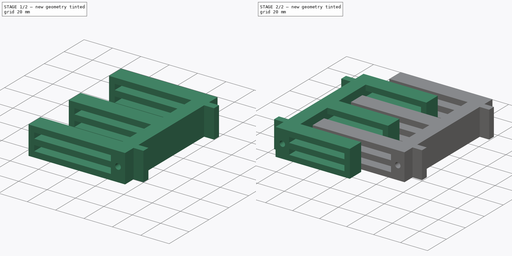
[diagram: build sequence overview — one tinted view per stage of 2, left to right]
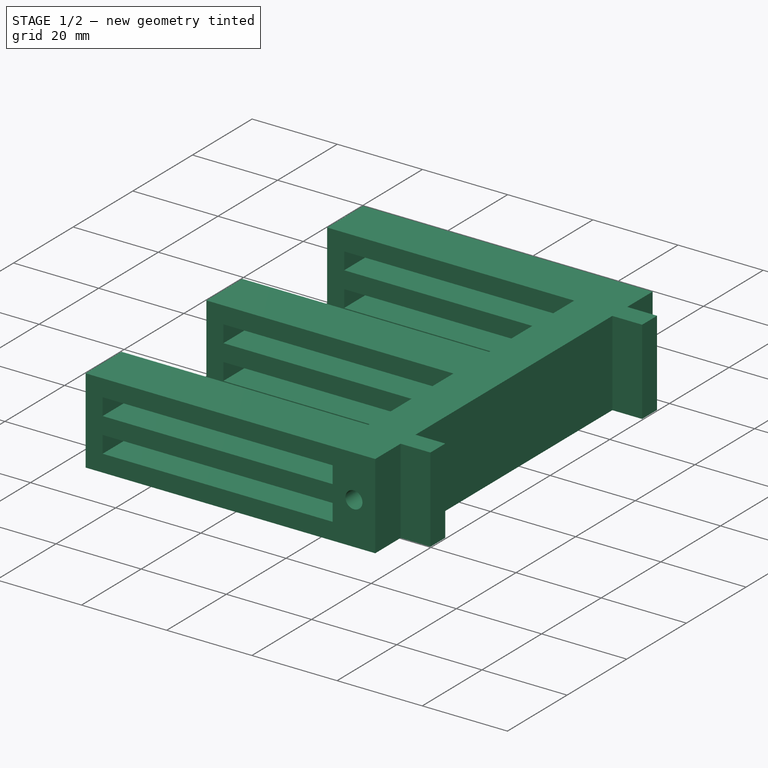
[diagram: stage 1 of 2 — iso view after this stage's code; geometry added in this stage tinted green]
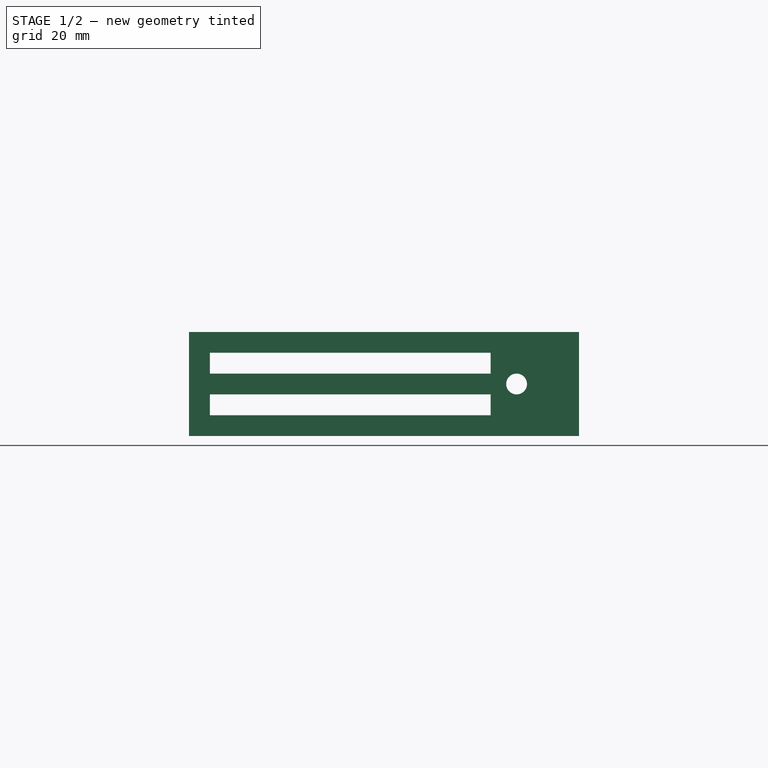
[diagram: stage 1 of 2 — front view after this stage's code; geometry added in this stage tinted green]
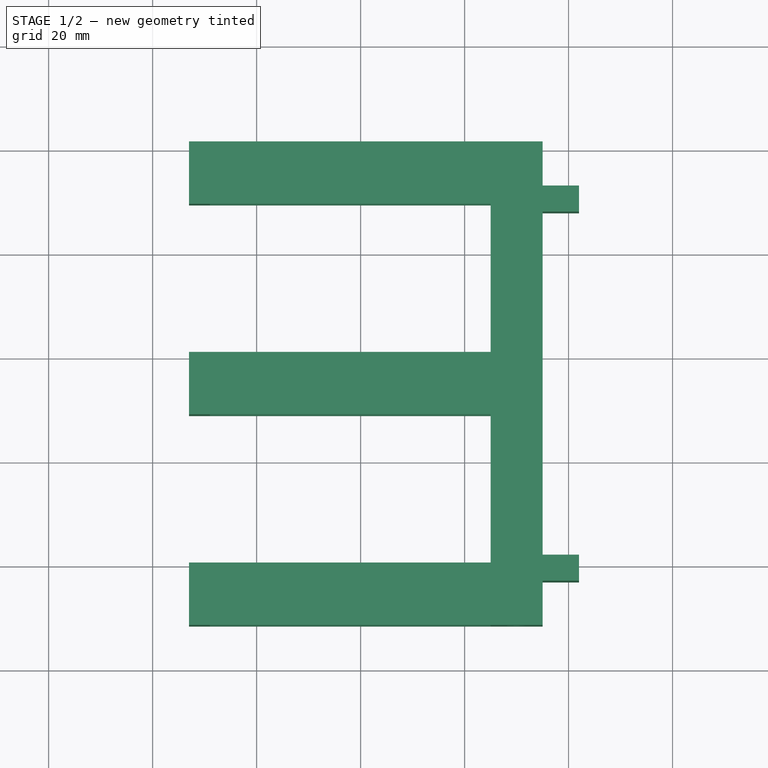
[diagram: stage 1 of 2 — top view after this stage's code; geometry added in this stage tinted green]
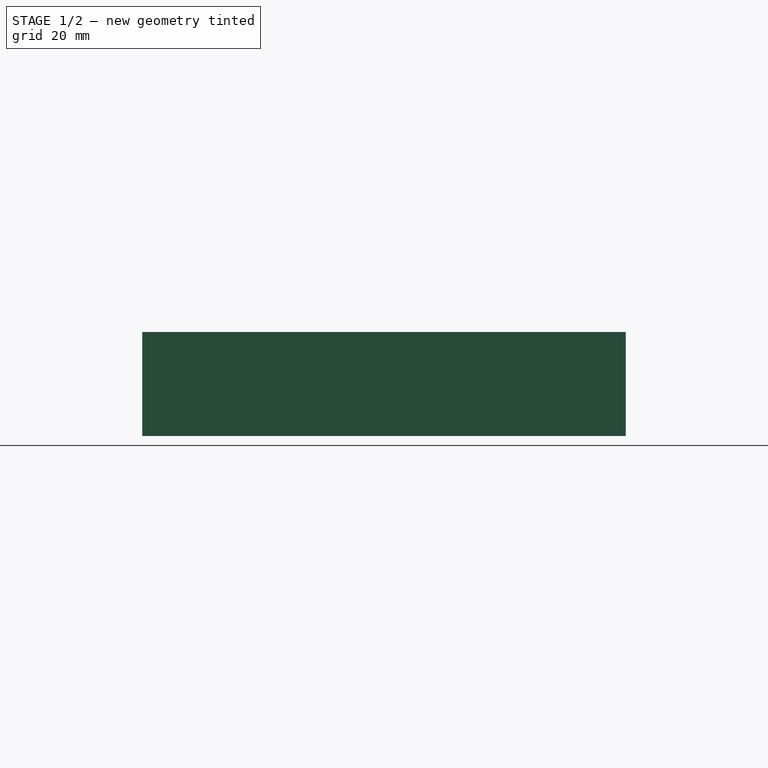
[diagram: stage 1 of 2 — right view after this stage's code; geometry added in this stage tinted green]
FCSTD DOCUMENT  (FreeCAD 0.15R4671 (Git))
Label: soporte_2.0_2
License: CreativeCommons Attribution-ShareAlike
LicenseURL: http://creativecommons.org/licenses/by-sa/4.0/
objects: Sketcher::SketchObject×4, PartDesign::Pad×2, PartDesign::Pocket×2, App::DocumentObjectGroup×2
note: 12 computed .brp shape members not serialized (recipe doc carries the construction recipe); baked Part::Feature solids carry a one-line shape summary decoded from their .brp

FEATURE [App::DocumentObjectGroup] Group  label="soporte_38mm"
  Group = -> [Pad,Pocket]
FEATURE [Sketcher::SketchObject] Sketch002  label="sketch_soporte001"
  Placement = pos=(65,15,0) rot=(0,0,1;3.14159rad)
  sketch-geometry (20):
    g0: LineSegment StartX=-10 StartY=-46.5 StartZ=0 EndX=58 EndY=-46.5 EndZ=0
    g1: LineSegment StartX=58 StartY=-46.5 StartZ=0 EndX=58 EndY=-34.5 EndZ=0
    g2: LineSegment StartX=58 StartY=-34.5 StartZ=0 EndX=0 EndY=-34.5 EndZ=0
    g3: LineSegment StartX=0 StartY=-34.5 StartZ=0 EndX=0 EndY=-6 EndZ=0
    g4: LineSegment StartX=0 StartY=-6 StartZ=0 EndX=58 EndY=-6 EndZ=0
    g5: LineSegment StartX=58 StartY=-6 StartZ=0 EndX=58 EndY=6 EndZ=0
    g6: LineSegment StartX=58 StartY=6 StartZ=0 EndX=0 EndY=6 EndZ=0
    g7: LineSegment StartX=0 StartY=6 StartZ=0 EndX=0 EndY=34.5 EndZ=0
    g8: LineSegment StartX=0 StartY=34.5 StartZ=0 EndX=58 EndY=34.5 EndZ=0
    g9: LineSegment StartX=58 StartY=34.5 StartZ=0 EndX=58 EndY=46.5 EndZ=0
    g10: LineSegment StartX=58 StartY=46.5 StartZ=0 EndX=-10 EndY=46.5 EndZ=0
    g11: LineSegment StartX=-10 StartY=-46.5 StartZ=0 EndX=-10 EndY=-38 EndZ=0
    g12: LineSegment StartX=-10 StartY=-38 StartZ=0 EndX=-17 EndY=-38 EndZ=0
    g13: LineSegment StartX=-17 StartY=-38 StartZ=0 EndX=-17 EndY=-33 EndZ=0
    g14: LineSegment StartX=-17 StartY=-33 StartZ=0 EndX=-10 EndY=-33 EndZ=0
    g15: LineSegment StartX=-10 StartY=-33 StartZ=0 EndX=-10 EndY=33 EndZ=0
    g16: LineSegment StartX=-10 StartY=33 StartZ=0 EndX=-17 EndY=33 EndZ=0
    g17: LineSegment StartX=-17 StartY=33 StartZ=0 EndX=-17 EndY=38 EndZ=0
    g18: LineSegment StartX=-17 StartY=38 StartZ=0 EndX=-10 EndY=38 EndZ=0
    g19: LineSegment StartX=-10 StartY=38 StartZ=0 EndX=-10 EndY=46.5 EndZ=0
  constraints (62):
    c: Horizontal(g0)
    c: Coincident(g0,g1)
    c: Vertical(g1)
    c: Coincident(g1,g2)
    c: Horizontal(g2)
    c: Coincident(g2,g3)
    c: PointOnObject(g3,g-2)
    c: Vertical(g3)
    c: Coincident(g3,g4)
    c: Horizontal(g4)
    c: Coincident(g4,g5)
    c: Vertical(g5)
    c: Coincident(g5,g6)
    c: Horizontal(g6)
    c: Coincident(g6,g7)
    c: Vertical(g7)
    c: Coincident(g7,g8)
    c: Horizontal(g8)
    c: Coincident(g8,g9)
    c: Vertical(g9)
    c: Coincident(g9,g10)
    c: Horizontal(g10)
    c: Equal(g4,g6)
    c: Symmetric(g6,g3,g-1)
    c: Symmetric(g7,g2,g-1)
    c: Equal(g8,g6)
    c: Equal(g6,g4)
    c: Equal(g4,g2)
    c: DistanceX(g0) = 68
    c: Equal(g1,g9)
    c: Equal(g10,g0)
    c: DistanceY(g1) = 12
    c: DistanceX(g2,g0) = -10
    c: DistanceY(g10,g0) = -93
    c: Coincident(g0,g11)
    c: Vertical(g11)
    c: Coincident(g11,g12)
    c: Horizontal(g12)
    c: Coincident(g12,g13)
    c: Vertical(g13)
    c: Coincident(g13,g14)
    c: Horizontal(g14)
    c: Coincident(g14,g15)
    c: Vertical(g15)
    c: Coincident(g15,g16)
    c: Horizontal(g16)
    c: Coincident(g16,g17)
    c: Vertical(g17)
    c: Coincident(g17,g18)
    c: Horizontal(g18)
    c: Coincident(g18,g19)
    c: Coincident(g19,g10)
    c: Vertical(g19)
    c: Equal(g18,g16)
    c: Equal(g16,g14)
    c: Equal(g14,g12)
    c: Equal(g13,g17)
    c: Equal(g19,g11)
    c: DistanceY(g13) = 5
    c: DistanceX(g14) = 7
    c: DistanceY(g15) = 66
    c: Equal(g5,g1)
FEATURE [PartDesign::Pad] Pad001  label="soporte001"
  Length = 20
  Length2 = 100
  Placement = pos=(65,15,0) rot=(0,0,1;3.14159rad)
  Sketch = -> Sketch002
  Type = 0
FEATURE [Sketcher::SketchObject] Sketch003  label="sketch_aligerado001"
  ExternalGeometry = -> [Pad001]
  Placement = pos=(65,61.5,0) rot=(0,0.707107,0.707107;3.14159rad)
  Support = -> Pad001 [Face1]
  sketch-geometry (12):
    g0: LineSegment [constr] StartX=-10 StartY=10 StartZ=0 EndX=58 EndY=10 EndZ=0
    g1: LineSegment [constr] StartX=58 StartY=10 StartZ=0 EndX=58 EndY=20 EndZ=0
    g2: LineSegment [constr] StartX=58 StartY=10 StartZ=0 EndX=58 EndY=0 EndZ=0
    g3: LineSegment StartX=0 StartY=16 StartZ=0 EndX=54 EndY=16 EndZ=0
    g4: LineSegment StartX=54 StartY=16 StartZ=0 EndX=54 EndY=12 EndZ=0
    g5: LineSegment StartX=54 StartY=12 StartZ=0 EndX=0 EndY=12 EndZ=0
    g6: LineSegment StartX=0 StartY=12 StartZ=0 EndX=0 EndY=16 EndZ=0
    g7: LineSegment StartX=0 StartY=8 StartZ=0 EndX=54 EndY=8 EndZ=0
    g8: LineSegment StartX=54 StartY=8 StartZ=0 EndX=54 EndY=4 EndZ=0
    g9: LineSegment StartX=54 StartY=4 StartZ=0 EndX=0 EndY=4 EndZ=0
    g10: LineSegment StartX=0 StartY=4 StartZ=0 EndX=0 EndY=8 EndZ=0
    g11: Circle CenterX=-5 CenterY=10 CenterZ=0 NormalX=0 NormalY=0 NormalZ=1 Radius=2
  constraints (33):
    c: PointOnObject(g0,g-4)
    c: Horizontal(g0)
    c: Coincident(g1,g0)
    c: Coincident(g1,g-6)
    c: Vertical(g1)
    c: Coincident(g2,g0)
    c: Coincident(g2,g-7)
    c: Equal(g1,g2)
    c: Coincident(g3,g4)
    c: Coincident(g4,g5)
    c: Coincident(g5,g6)
    c: Coincident(g6,g3)
    c: Horizontal(g3)
    c: Horizontal(g5)
    c: Vertical(g4)
    c: Vertical(g6)
    c: Coincident(g7,g8)
    c: Coincident(g8,g9)
    c: Coincident(g9,g10)
    c: Coincident(g10,g7)
    c: Horizontal(g7)
    c: Horizontal(g9)
    c: Vertical(g8)
    c: Vertical(g10)
    c: Symmetric(g7,g5,g0)
    c: Symmetric(g3,g8,g0)
    c: DistanceX(g8,g2) = 4
    c: DistanceY(g4,g7) = -4
    c: DistanceY(g8,g2) = -4
    c: PointOnObject(g11,g0)
    c: Radius(g11) = 2
    c: DistanceX(g11,g0) = -5
    c: PointOnObject(g9,g-3)
FEATURE [PartDesign::Pocket] Pocket001  label="soporte_aligerado001"
  Length = 5
  Placement = pos=(65,15,0) rot=(0,0,1;3.14159rad)
  Sketch = -> Sketch003
  Type = 1
FEATURE [App::DocumentObjectGroup] Group001  label="soporte_40mm"
  Group = -> [Pad001,Pocket001]
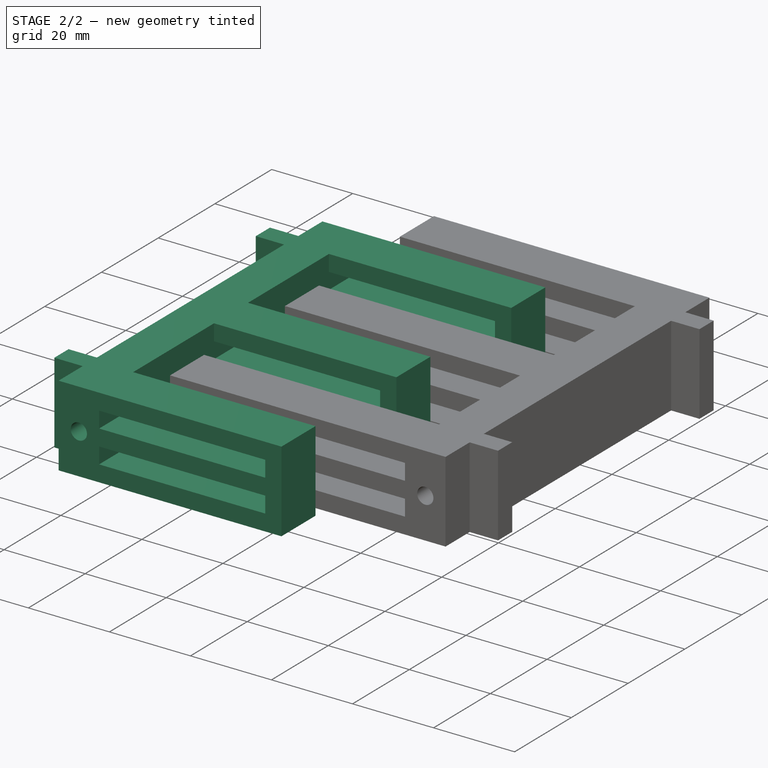
[diagram: stage 2 of 2 — iso view after this stage's code; geometry added in this stage tinted green]
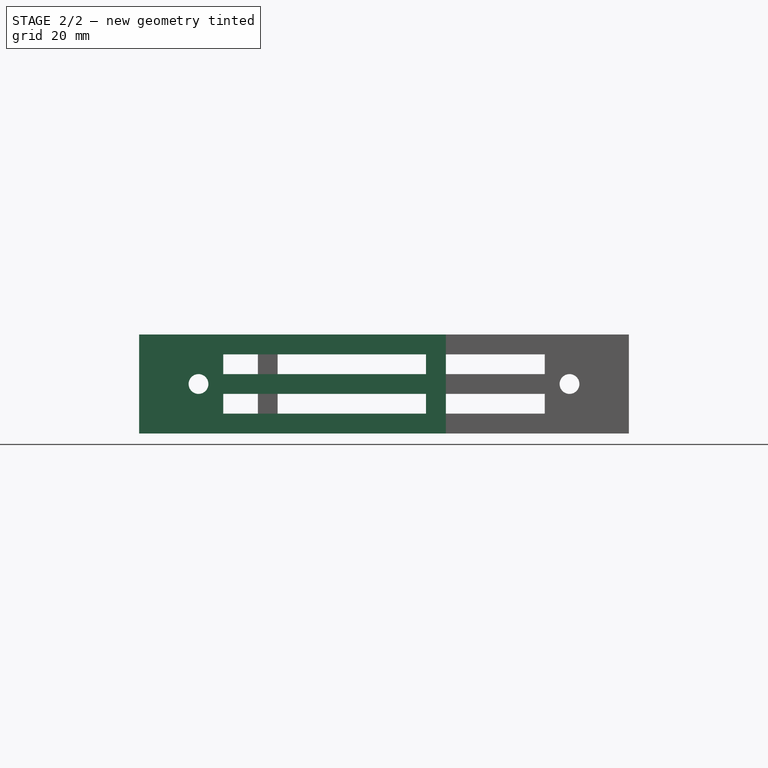
[diagram: stage 2 of 2 — front view after this stage's code; geometry added in this stage tinted green]
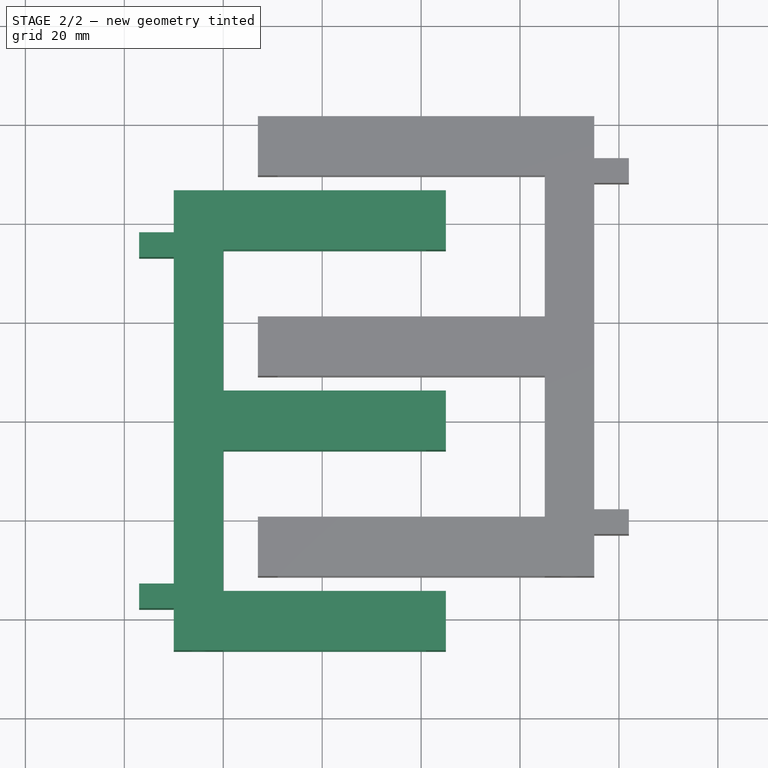
[diagram: stage 2 of 2 — top view after this stage's code; geometry added in this stage tinted green]
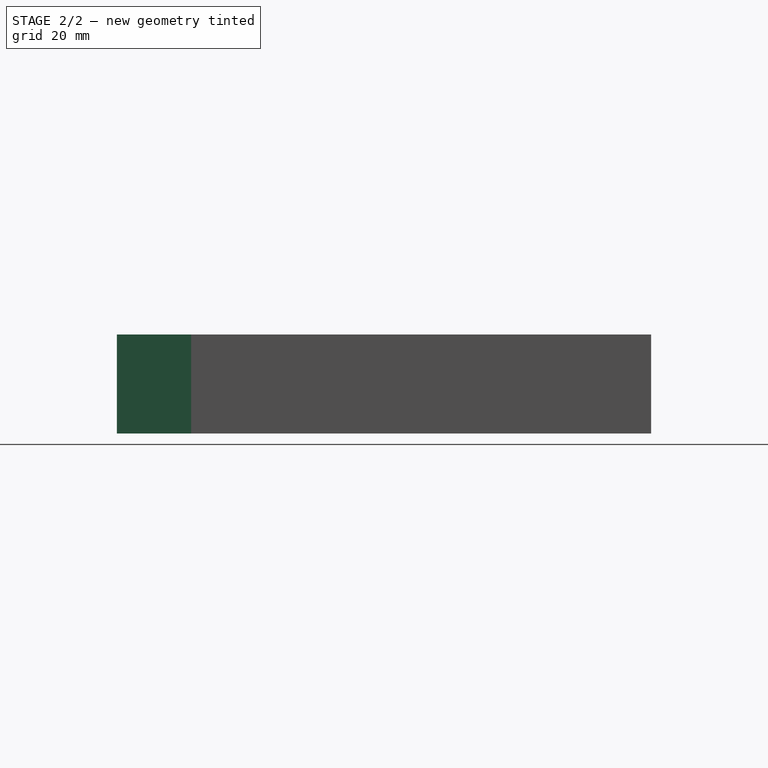
[diagram: stage 2 of 2 — right view after this stage's code; geometry added in this stage tinted green]
FEATURE [Sketcher::SketchObject] Sketch  label="sketch_soporte"
  sketch-geometry (20):
    g0: LineSegment StartX=-10 StartY=-46.5 StartZ=0 EndX=45 EndY=-46.5 EndZ=0
    g1: LineSegment StartX=45 StartY=-46.5 StartZ=0 EndX=45 EndY=-34.5 EndZ=0
    g2: LineSegment StartX=45 StartY=-34.5 StartZ=0 EndX=0 EndY=-34.5 EndZ=0
    g3: LineSegment StartX=0 StartY=-34.5 StartZ=0 EndX=0 EndY=-6 EndZ=0
    g4: LineSegment StartX=0 StartY=-6 StartZ=0 EndX=45 EndY=-6 EndZ=0
    g5: LineSegment StartX=45 StartY=-6 StartZ=0 EndX=45 EndY=6 EndZ=0
    g6: LineSegment StartX=45 StartY=6 StartZ=0 EndX=0 EndY=6 EndZ=0
    g7: LineSegment StartX=0 StartY=6 StartZ=0 EndX=0 EndY=34.5 EndZ=0
    g8: LineSegment StartX=0 StartY=34.5 StartZ=0 EndX=45 EndY=34.5 EndZ=0
    g9: LineSegment StartX=45 StartY=34.5 StartZ=0 EndX=45 EndY=46.5 EndZ=0
    g10: LineSegment StartX=45 StartY=46.5 StartZ=0 EndX=-10 EndY=46.5 EndZ=0
    g11: LineSegment StartX=-10 StartY=-46.5 StartZ=0 EndX=-10 EndY=-38 EndZ=0
    g12: LineSegment StartX=-10 StartY=-38 StartZ=0 EndX=-17 EndY=-38 EndZ=0
    g13: LineSegment StartX=-17 StartY=-38 StartZ=0 EndX=-17 EndY=-33 EndZ=0
    g14: LineSegment StartX=-17 StartY=-33 StartZ=0 EndX=-10 EndY=-33 EndZ=0
    g15: LineSegment StartX=-10 StartY=-33 StartZ=0 EndX=-10 EndY=33 EndZ=0
    g16: LineSegment StartX=-10 StartY=33 StartZ=0 EndX=-17 EndY=33 EndZ=0
    g17: LineSegment StartX=-17 StartY=33 StartZ=0 EndX=-17 EndY=38 EndZ=0
    g18: LineSegment StartX=-17 StartY=38 StartZ=0 EndX=-10 EndY=38 EndZ=0
    g19: LineSegment StartX=-10 StartY=38 StartZ=0 EndX=-10 EndY=46.5 EndZ=0
  constraints (62):
    c: Horizontal(g0)
    c: Coincident(g0,g1)
    c: Vertical(g1)
    c: Coincident(g1,g2)
    c: Horizontal(g2)
    c: Coincident(g2,g3)
    c: PointOnObject(g3,g-2)
    c: Vertical(g3)
    c: Coincident(g3,g4)
    c: Horizontal(g4)
    c: Coincident(g4,g5)
    c: Vertical(g5)
    c: Coincident(g5,g6)
    c: Horizontal(g6)
    c: Coincident(g6,g7)
    c: Vertical(g7)
    c: Coincident(g7,g8)
    c: Horizontal(g8)
    c: Coincident(g8,g9)
    c: Vertical(g9)
    c: Coincident(g9,g10)
    c: Horizontal(g10)
    c: Equal(g4,g6)
    c: Symmetric(g6,g3,g-1)
    c: Symmetric(g7,g2,g-1)
    c: Equal(g8,g6)
    c: Equal(g6,g4)
    c: Equal(g4,g2)
    c: DistanceX(g0) = 55
    c: Equal(g1,g9)
    c: Equal(g10,g0)
    c: DistanceY(g1) = 12
    c: DistanceX(g2,g0) = -10
    c: DistanceY(g10,g0) = -93
    c: Coincident(g0,g11)
    c: Vertical(g11)
    c: Coincident(g11,g12)
    c: Horizontal(g12)
    c: Coincident(g12,g13)
    c: Vertical(g13)
    c: Coincident(g13,g14)
    c: Horizontal(g14)
    c: Coincident(g14,g15)
    c: Vertical(g15)
    c: Coincident(g15,g16)
    c: Horizontal(g16)
    c: Coincident(g16,g17)
    c: Vertical(g17)
    c: Coincident(g17,g18)
    c: Horizontal(g18)
    c: Coincident(g18,g19)
    c: Coincident(g19,g10)
    c: Vertical(g19)
    c: Equal(g18,g16)
    c: Equal(g16,g14)
    c: Equal(g14,g12)
    c: Equal(g13,g17)
    c: Equal(g19,g11)
    c: DistanceY(g13) = 5
    c: DistanceX(g14) = 7
    c: DistanceY(g15) = 66
    c: Equal(g5,g1)
FEATURE [PartDesign::Pad] Pad  label="soporte"
  Length = 20
  Length2 = 100
  Sketch = -> Sketch
  Type = 0
FEATURE [Sketcher::SketchObject] Sketch001  label="sketch_aligerado"
  ExternalGeometry = -> [Pad]
  Placement = pos=(0,-46.5,0) rot=(1,0,0;1.5708rad)
  Support = -> Pad [Face1]
  sketch-geometry (12):
    g0: LineSegment [constr] StartX=-10 StartY=10 StartZ=0 EndX=45 EndY=10 EndZ=0
    g1: LineSegment [constr] StartX=45 StartY=10 StartZ=0 EndX=45 EndY=20 EndZ=0
    g2: LineSegment [constr] StartX=45 StartY=10 StartZ=0 EndX=45 EndY=0 EndZ=0
    g3: LineSegment StartX=0 StartY=16 StartZ=0 EndX=41 EndY=16 EndZ=0
    g4: LineSegment StartX=41 StartY=16 StartZ=0 EndX=41 EndY=12 EndZ=0
    g5: LineSegment StartX=41 StartY=12 StartZ=0 EndX=0 EndY=12 EndZ=0
    g6: LineSegment StartX=0 StartY=12 StartZ=0 EndX=0 EndY=16 EndZ=0
    g7: LineSegment StartX=0 StartY=8 StartZ=0 EndX=41 EndY=8 EndZ=0
    g8: LineSegment StartX=41 StartY=8 StartZ=0 EndX=41 EndY=4 EndZ=0
    g9: LineSegment StartX=41 StartY=4 StartZ=0 EndX=0 EndY=4 EndZ=0
    g10: LineSegment StartX=0 StartY=4 StartZ=0 EndX=0 EndY=8 EndZ=0
    g11: Circle CenterX=-5 CenterY=10 CenterZ=0 NormalX=0 NormalY=0 NormalZ=1 Radius=2
  constraints (33):
    c: PointOnObject(g0,g-4)
    c: Horizontal(g0)
    c: Coincident(g1,g0)
    c: Coincident(g1,g-6)
    c: Vertical(g1)
    c: Coincident(g2,g0)
    c: Coincident(g2,g-7)
    c: Equal(g1,g2)
    c: Coincident(g3,g4)
    c: Coincident(g4,g5)
    c: Coincident(g5,g6)
    c: Coincident(g6,g3)
    c: Horizontal(g3)
    c: Horizontal(g5)
    c: Vertical(g4)
    c: Vertical(g6)
    c: Coincident(g7,g8)
    c: Coincident(g8,g9)
    c: Coincident(g9,g10)
    c: Coincident(g10,g7)
    c: Horizontal(g7)
    c: Horizontal(g9)
    c: Vertical(g8)
    c: Vertical(g10)
    c: Symmetric(g7,g5,g0)
    c: Symmetric(g3,g8,g0)
    c: DistanceX(g8,g2) = 4
    c: DistanceY(g4,g7) = -4
    c: DistanceY(g8,g2) = -4
    c: PointOnObject(g11,g0)
    c: Radius(g11) = 2
    c: DistanceX(g11,g0) = -5
    c: PointOnObject(g9,g-3)
FEATURE [PartDesign::Pocket] Pocket  label="soporte_aligerado"
  Length = 5
  Sketch = -> Sketch001
  Type = 1
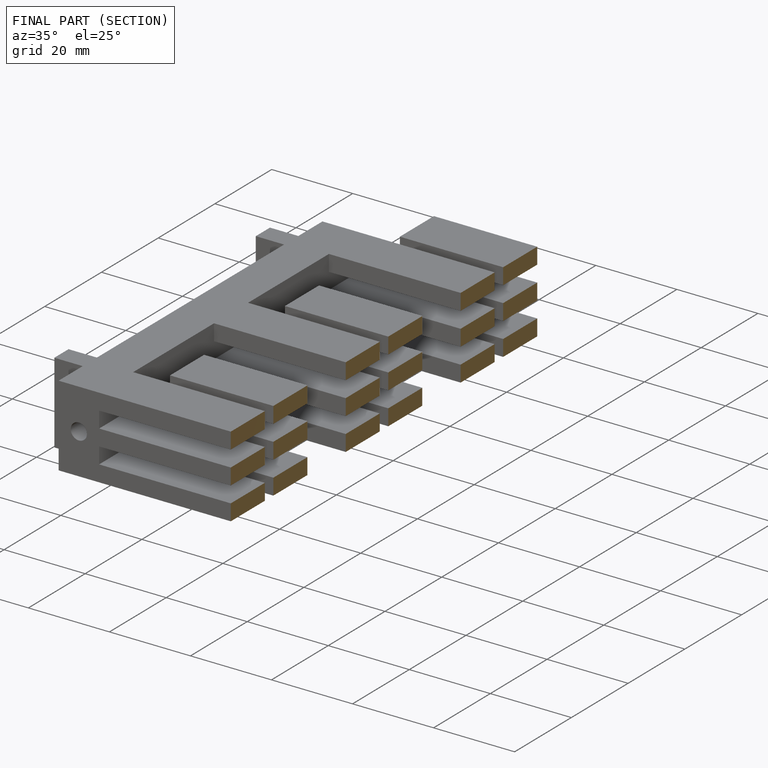
[diagram: finished part — half-section view (interior)]
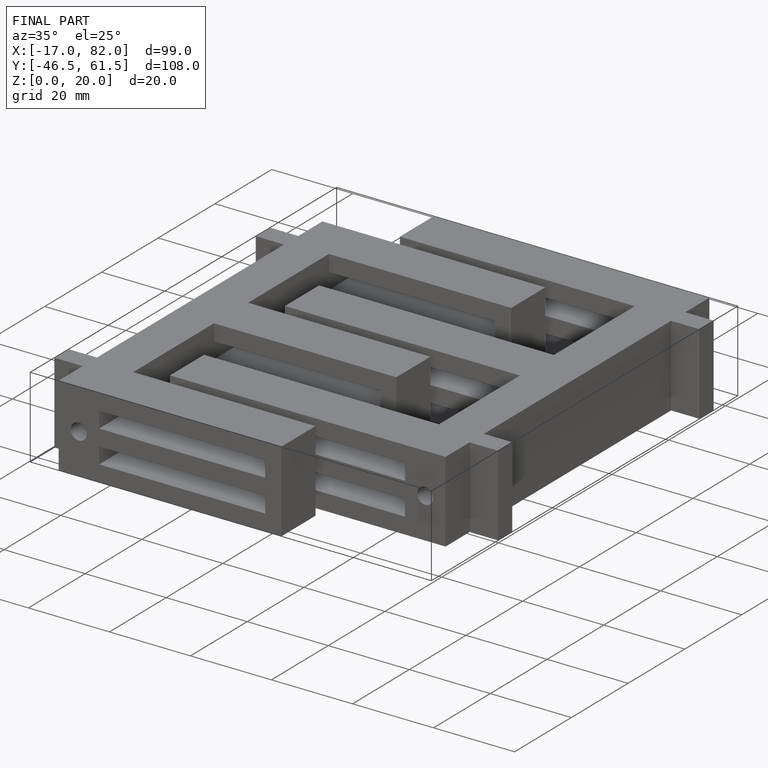
[diagram: finished part — iso view with bounding-box wireframe]
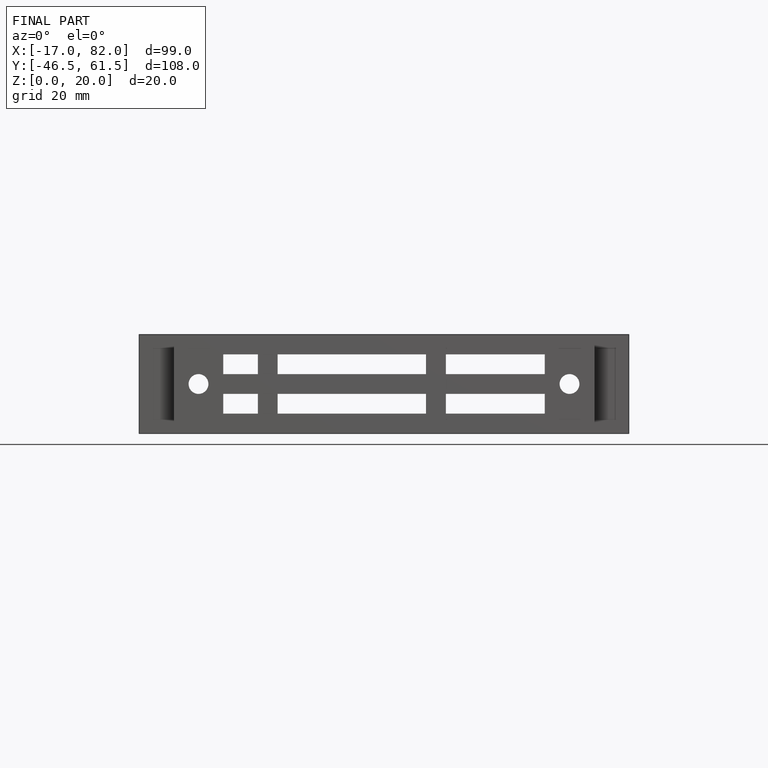
[diagram: finished part — front view with bounding-box wireframe]
